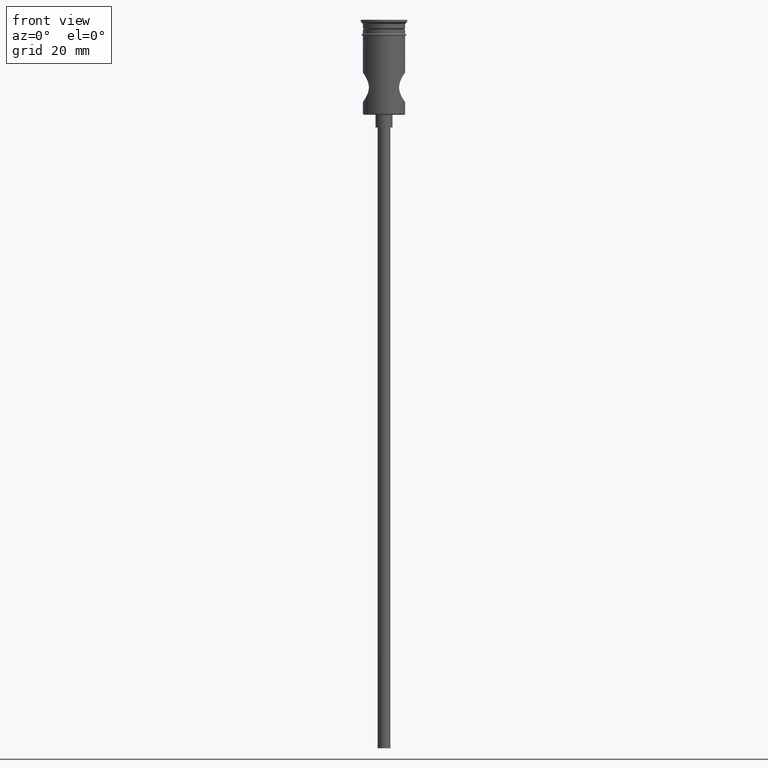
[diagram: clean part render]
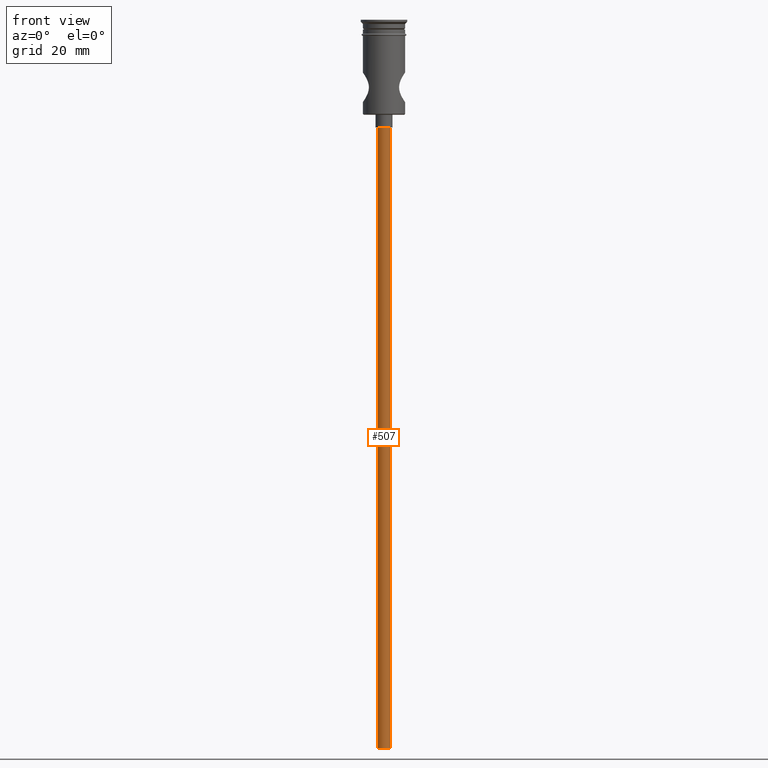
[diagram: same view with one face highlighted and labeled with its STEP entity id]
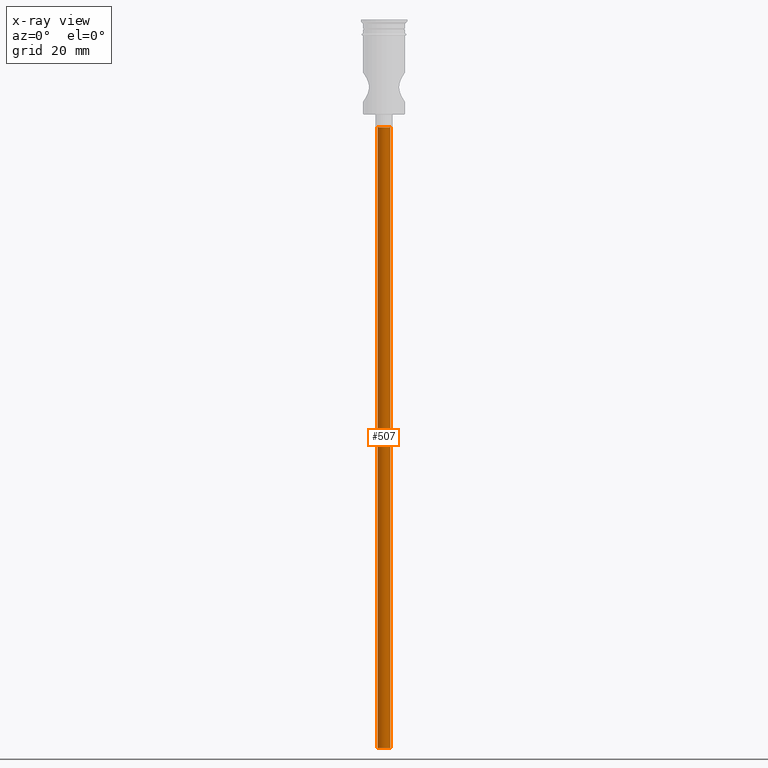
[diagram: x-ray of the same camera — body ghosted, the highlighted face saturated]
A machine part, front view. The second image highlights one B-rep face of the part: STEP entity #507.
The next image is the same camera in x-ray: the body ghosted, the highlighted face saturated — about 0% of this face is hidden behind the body in this view.
In plain terms, the highlighted cylindrical surface (edge-blend (fillet) strip) has radius 1.5 mm, axis along (-0, -0, 1).
Its self-contained STEP definition (entity closure, byte-faithful):
#38 = DIRECTION ( 'NONE',  ( 0.000000000000000000, 0.000000000000000000, -1.000000000000000000 ) ) ;
#89 = CIRCLE ( 'NONE', #1333, 1.500000000000000222 ) ;
#94 = ORIENTED_EDGE ( 'NONE', *, *, #1206, .F. ) ;
#117 = CARTESIAN_POINT ( 'NONE',  ( 1.500000000000000222, 0.000000000000000000, -25.50000000000000000 ) ) ;
#132 = AXIS2_PLACEMENT_3D ( 'NONE', #623, #861, #410 ) ;
#138 = AXIS2_PLACEMENT_3D ( 'NONE', #646, #857, #1389 ) ;
#181 = CYLINDRICAL_SURFACE ( 'NONE', #132, 1.500000000000000222 ) ;
#205 = ORIENTED_EDGE ( 'NONE', *, *, #1106, .T. ) ;
#261 = ORIENTED_EDGE ( 'NONE', *, *, #345, .F. ) ;
#318 = EDGE_LOOP ( 'NONE', ( #261, #94, #205, #1409 ) ) ;
#332 = VECTOR ( 'NONE', #1150, 1000.000000000000000 ) ;
#344 = CARTESIAN_POINT ( 'NONE',  ( 1.500000000000000222, 0.000000000000000000, -172.5000000000000000 ) ) ;
#345 = EDGE_CURVE ( 'NONE', #880, #406, #1325, .T. ) ;
#381 = CARTESIAN_POINT ( 'NONE',  ( -1.500000000000000222, 1.836970198721030181E-16, -25.50000000000000000 ) ) ;
#406 = VERTEX_POINT ( 'NONE', #381 ) ;
#410 = DIRECTION ( 'NONE',  ( 1.000000000000000000, 0.000000000000000000, 0.000000000000000000 ) ) ;
#424 = CIRCLE ( 'NONE', #138, 1.500000000000000222 ) ;
#464 = DIRECTION ( 'NONE',  ( -0.000000000000000000, -0.000000000000000000, 1.000000000000000000 ) ) ;
#467 = CARTESIAN_POINT ( 'NONE',  ( -1.500000000000000222, 1.836970198721030181E-16, -172.5000000000000000 ) ) ;
#477 = CARTESIAN_POINT ( 'NONE',  ( 0.000000000000000000, 0.000000000000000000, -172.5000000000000000 ) ) ;
#507 = ADVANCED_FACE ( 'NONE', ( #1277 ), #181, .T. ) ;
#623 = CARTESIAN_POINT ( 'NONE',  ( 0.000000000000000000, 0.000000000000000000, -172.5000000000000000 ) ) ;
#646 = CARTESIAN_POINT ( 'NONE',  ( 0.000000000000000000, 0.000000000000000000, -25.50000000000000000 ) ) ;
#675 = VERTEX_POINT ( 'NONE', #117 ) ;
#857 = DIRECTION ( 'NONE',  ( 0.000000000000000000, 0.000000000000000000, -1.000000000000000000 ) ) ;
#861 = DIRECTION ( 'NONE',  ( -0.000000000000000000, -0.000000000000000000, 1.000000000000000000 ) ) ;
#880 = VERTEX_POINT ( 'NONE', #467 ) ;
#973 = VERTEX_POINT ( 'NONE', #344 ) ;
#1016 = CARTESIAN_POINT ( 'NONE',  ( -1.500000000000000222, 1.836970198721030181E-16, -172.5000000000000000 ) ) ;
#1106 = EDGE_CURVE ( 'NONE', #973, #675, #1256, .T. ) ;
#1150 = DIRECTION ( 'NONE',  ( -0.000000000000000000, -0.000000000000000000, 1.000000000000000000 ) ) ;
#1206 = EDGE_CURVE ( 'NONE', #973, #880, #89, .T. ) ;
#1213 = VECTOR ( 'NONE', #464, 1000.000000000000000 ) ;
#1256 = LINE ( 'NONE', #1278, #332 ) ;
#1277 = FACE_OUTER_BOUND ( 'NONE', #318, .T. ) ;
#1278 = CARTESIAN_POINT ( 'NONE',  ( 1.500000000000000222, 0.000000000000000000, -172.5000000000000000 ) ) ;
#1321 = EDGE_CURVE ( 'NONE', #675, #406, #424, .T. ) ;
#1325 = LINE ( 'NONE', #1016, #1213 ) ;
#1333 = AXIS2_PLACEMENT_3D ( 'NONE', #477, #38, #1382 ) ;
#1382 = DIRECTION ( 'NONE',  ( -1.000000000000000000, 0.000000000000000000, 0.000000000000000000 ) ) ;
#1389 = DIRECTION ( 'NONE',  ( -1.000000000000000000, 0.000000000000000000, 0.000000000000000000 ) ) ;
#1409 = ORIENTED_EDGE ( 'NONE', *, *, #1321, .T. ) ;